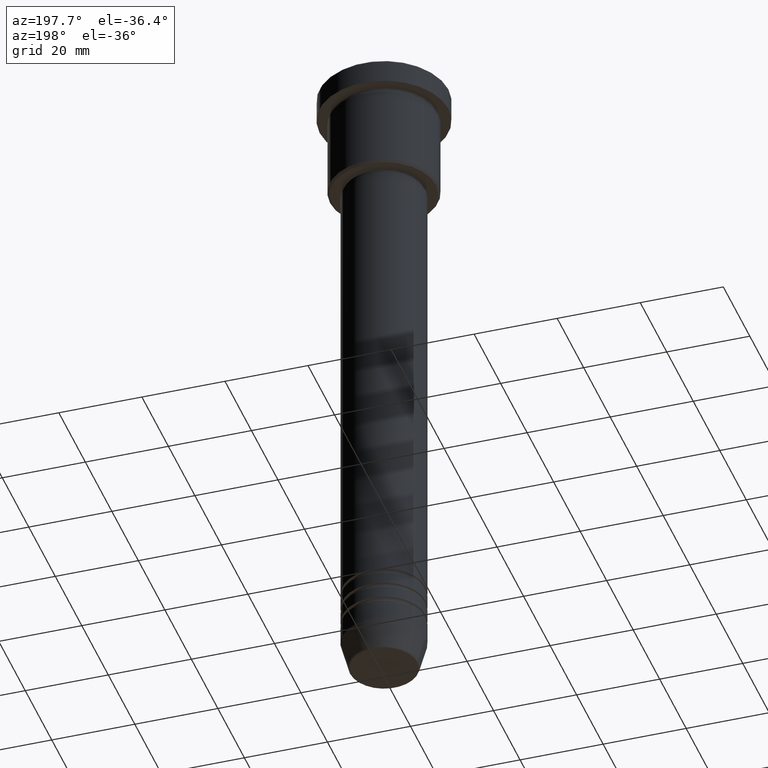
[diagram: clean part render]
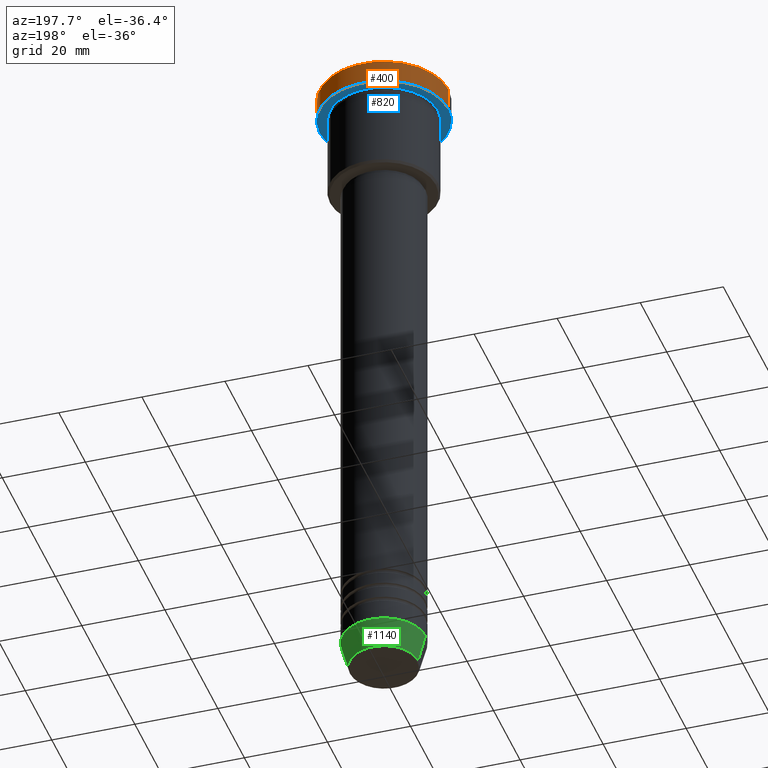
[diagram: same view with three faces highlighted in distinct colors, each labeled with its STEP entity id]
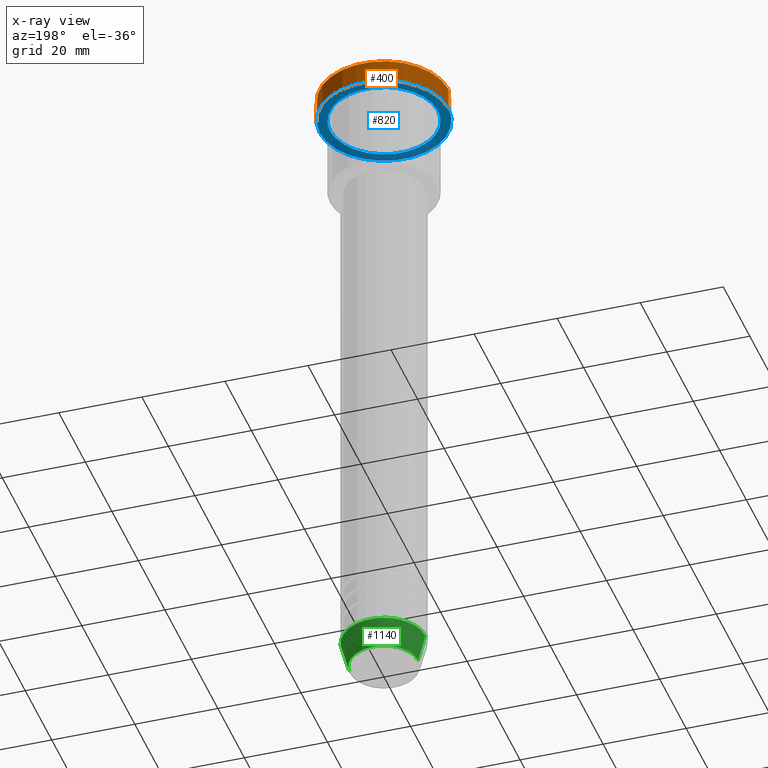
[diagram: x-ray of the same camera — body ghosted, the three highlighted faces saturated]
A machine part, auxiliary view with three faces highlighted in distinct colors.
The next image is the same camera in x-ray (body ghosted, the three faces saturated) — at least one of them is partly hidden behind the body in this view.
Their STEP definitions:

[orange] entity #400 — the highlighted cylindrical surface (partial cylindrical patch) has radius 15.5 mm, axis along (-0, -0, 1).
#18 = DIRECTION ( 'NONE',  ( 0.000000000000000000, 0.000000000000000000, -1.000000000000000000 ) ) ;
#50 = VERTEX_POINT ( 'NONE', #390 ) ;
#60 = DIRECTION ( 'NONE',  ( 1.000000000000000000, 0.000000000000000000, 0.000000000000000000 ) ) ;
#71 = DIRECTION ( 'NONE',  ( -0.000000000000000000, -0.000000000000000000, 1.000000000000000000 ) ) ;
#72 = LINE ( 'NONE', #338, #926 ) ;
#73 = EDGE_LOOP ( 'NONE', ( #109, #828, #942, #634 ) ) ;
#81 = CARTESIAN_POINT ( 'NONE',  ( 15.50000000000000000, 0.000000000000000000, -0.5000000000000125455 ) ) ;
#109 = ORIENTED_EDGE ( 'NONE', *, *, #639, .T. ) ;
#112 = CARTESIAN_POINT ( 'NONE',  ( 15.50000000000000000, 0.000000000000000000, -5.999999999999995559 ) ) ;
#165 = EDGE_CURVE ( 'NONE', #929, #724, #72, .T. ) ;
#184 = DIRECTION ( 'NONE',  ( 1.000000000000000000, 0.000000000000000000, 0.000000000000000000 ) ) ;
#212 = AXIS2_PLACEMENT_3D ( 'NONE', #886, #71, #60 ) ;
#258 = EDGE_CURVE ( 'NONE', #785, #724, #583, .T. ) ;
#291 = LINE ( 'NONE', #368, #848 ) ;
#338 = CARTESIAN_POINT ( 'NONE',  ( 15.50000000000000000, 0.000000000000000000, 0.000000000000000000 ) ) ;
#367 = AXIS2_PLACEMENT_3D ( 'NONE', #1135, #759, #414 ) ;
#368 = CARTESIAN_POINT ( 'NONE',  ( -15.50000000000000000, 1.898202538678397557E-15, 0.000000000000000000 ) ) ;
#372 = EDGE_CURVE ( 'NONE', #50, #785, #291, .T. ) ;
#390 = CARTESIAN_POINT ( 'NONE',  ( -15.50000000000000000, 1.898202538678397557E-15, -5.999999999999995559 ) ) ;
#400 = ADVANCED_FACE ( 'NONE', ( #855 ), #876, .T. ) ;
#414 = DIRECTION ( 'NONE',  ( 1.000000000000000000, 0.000000000000000000, 0.000000000000000000 ) ) ;
#583 = CIRCLE ( 'NONE', #869, 15.50000000000000000 ) ;
#634 = ORIENTED_EDGE ( 'NONE', *, *, #165, .F. ) ;
#636 = DIRECTION ( 'NONE',  ( -0.000000000000000000, -0.000000000000000000, 1.000000000000000000 ) ) ;
#639 = EDGE_CURVE ( 'NONE', #929, #50, #830, .T. ) ;
#724 = VERTEX_POINT ( 'NONE', #81 ) ;
#741 = CARTESIAN_POINT ( 'NONE',  ( -15.50000000000000000, 1.898202538678397557E-15, -0.5000000000000125455 ) ) ;
#753 = CARTESIAN_POINT ( 'NONE',  ( 0.000000000000000000, 0.000000000000000000, -0.5000000000000125455 ) ) ;
#759 = DIRECTION ( 'NONE',  ( -0.000000000000000000, -0.000000000000000000, 1.000000000000000000 ) ) ;
#785 = VERTEX_POINT ( 'NONE', #741 ) ;
#828 = ORIENTED_EDGE ( 'NONE', *, *, #372, .T. ) ;
#830 = CIRCLE ( 'NONE', #212, 15.50000000000000000 ) ;
#848 = VECTOR ( 'NONE', #1026, 1000.000000000000000 ) ;
#855 = FACE_OUTER_BOUND ( 'NONE', #73, .T. ) ;
#869 = AXIS2_PLACEMENT_3D ( 'NONE', #753, #18, #184 ) ;
#876 = CYLINDRICAL_SURFACE ( 'NONE', #367, 15.50000000000000000 ) ;
#886 = CARTESIAN_POINT ( 'NONE',  ( 0.000000000000000000, 0.000000000000000000, -5.999999999999995559 ) ) ;
#926 = VECTOR ( 'NONE', #636, 1000.000000000000000 ) ;
#929 = VERTEX_POINT ( 'NONE', #112 ) ;
#942 = ORIENTED_EDGE ( 'NONE', *, *, #258, .T. ) ;
#1026 = DIRECTION ( 'NONE',  ( -0.000000000000000000, -0.000000000000000000, 1.000000000000000000 ) ) ;
#1135 = CARTESIAN_POINT ( 'NONE',  ( 0.000000000000000000, 0.000000000000000000, 0.000000000000000000 ) ) ;

[blue] entity #820 — the highlighted planar face has unit normal (0, 0, -1).
#50 = VERTEX_POINT ( 'NONE', #390 ) ;
#60 = DIRECTION ( 'NONE',  ( 1.000000000000000000, 0.000000000000000000, 0.000000000000000000 ) ) ;
#71 = DIRECTION ( 'NONE',  ( -0.000000000000000000, -0.000000000000000000, 1.000000000000000000 ) ) ;
#91 = CARTESIAN_POINT ( 'NONE',  ( 0.000000000000000000, 15.50000000000000000, -5.999999999999995559 ) ) ;
#112 = CARTESIAN_POINT ( 'NONE',  ( 15.50000000000000000, 0.000000000000000000, -5.999999999999995559 ) ) ;
#124 = DIRECTION ( 'NONE',  ( -0.000000000000000000, -0.000000000000000000, 1.000000000000000000 ) ) ;
#212 = AXIS2_PLACEMENT_3D ( 'NONE', #886, #71, #60 ) ;
#259 = VERTEX_POINT ( 'NONE', #840 ) ;
#282 = VERTEX_POINT ( 'NONE', #557 ) ;
#374 = DIRECTION ( 'NONE',  ( -1.000000000000000000, 0.000000000000000000, -0.000000000000000000 ) ) ;
#387 = CIRCLE ( 'NONE', #907, 15.50000000000000000 ) ;
#390 = CARTESIAN_POINT ( 'NONE',  ( -15.50000000000000000, 1.898202538678397557E-15, -5.999999999999995559 ) ) ;
#413 = EDGE_CURVE ( 'NONE', #50, #929, #387, .T. ) ;
#436 = EDGE_LOOP ( 'NONE', ( #750, #909 ) ) ;
#498 = EDGE_CURVE ( 'NONE', #282, #259, #1032, .T. ) ;
#556 = FACE_OUTER_BOUND ( 'NONE', #921, .T. ) ;
#557 = CARTESIAN_POINT ( 'NONE',  ( -13.00000000000000000, 0.000000000000000000, -5.999999999999994671 ) ) ;
#598 = DIRECTION ( 'NONE',  ( 1.000000000000000000, 0.000000000000000000, 0.000000000000000000 ) ) ;
#605 = DIRECTION ( 'NONE',  ( -1.000000000000000000, 0.000000000000000000, 0.000000000000000000 ) ) ;
#639 = EDGE_CURVE ( 'NONE', #929, #50, #830, .T. ) ;
#658 = CIRCLE ( 'NONE', #924, 13.00000000000000000 ) ;
#698 = CARTESIAN_POINT ( 'NONE',  ( 0.000000000000000000, 0.000000000000000000, -5.999999999999995559 ) ) ;
#750 = ORIENTED_EDGE ( 'NONE', *, *, #498, .T. ) ;
#787 = AXIS2_PLACEMENT_3D ( 'NONE', #91, #832, #374 ) ;
#820 = ADVANCED_FACE ( 'NONE', ( #1099, #556 ), #922, .T. ) ;
#830 = CIRCLE ( 'NONE', #212, 15.50000000000000000 ) ;
#832 = DIRECTION ( 'NONE',  ( 0.000000000000000000, 0.000000000000000000, -1.000000000000000000 ) ) ;
#840 = CARTESIAN_POINT ( 'NONE',  ( 13.00000000000000000, 1.592040838891559095E-15, -5.999999999999994671 ) ) ;
#861 = DIRECTION ( 'NONE',  ( -0.000000000000000000, -0.000000000000000000, 1.000000000000000000 ) ) ;
#865 = DIRECTION ( 'NONE',  ( -1.000000000000000000, 0.000000000000000000, 0.000000000000000000 ) ) ;
#886 = CARTESIAN_POINT ( 'NONE',  ( 0.000000000000000000, 0.000000000000000000, -5.999999999999995559 ) ) ;
#907 = AXIS2_PLACEMENT_3D ( 'NONE', #698, #1056, #598 ) ;
#909 = ORIENTED_EDGE ( 'NONE', *, *, #960, .T. ) ;
#921 = EDGE_LOOP ( 'NONE', ( #1137, #934 ) ) ;
#922 = PLANE ( 'NONE',  #787 ) ;
#924 = AXIS2_PLACEMENT_3D ( 'NONE', #954, #124, #605 ) ;
#929 = VERTEX_POINT ( 'NONE', #112 ) ;
#934 = ORIENTED_EDGE ( 'NONE', *, *, #413, .F. ) ;
#954 = CARTESIAN_POINT ( 'NONE',  ( 0.000000000000000000, 0.000000000000000000, -5.999999999999995559 ) ) ;
#960 = EDGE_CURVE ( 'NONE', #259, #282, #658, .T. ) ;
#966 = CARTESIAN_POINT ( 'NONE',  ( 0.000000000000000000, 0.000000000000000000, -5.999999999999995559 ) ) ;
#1032 = CIRCLE ( 'NONE', #1167, 13.00000000000000000 ) ;
#1056 = DIRECTION ( 'NONE',  ( -0.000000000000000000, -0.000000000000000000, 1.000000000000000000 ) ) ;
#1099 = FACE_BOUND ( 'NONE', #436, .T. ) ;
#1137 = ORIENTED_EDGE ( 'NONE', *, *, #639, .F. ) ;
#1167 = AXIS2_PLACEMENT_3D ( 'NONE', #966, #861, #865 ) ;

[green] entity #1140 — the highlighted conical surface has half-angle 15 deg.
#10 = DIRECTION ( 'NONE',  ( -0.000000000000000000, -0.000000000000000000, 1.000000000000000000 ) ) ;
#80 = ORIENTED_EDGE ( 'NONE', *, *, #294, .F. ) ;
#141 = CARTESIAN_POINT ( 'NONE',  ( -10.00000000000000000, 1.224646799147353256E-15, -155.0000000000000284 ) ) ;
#196 = DIRECTION ( 'NONE',  ( -0.000000000000000000, -0.000000000000000000, 1.000000000000000000 ) ) ;
#210 = CARTESIAN_POINT ( 'NONE',  ( 0.000000000000000000, 0.000000000000000000, -161.6294095225512990 ) ) ;
#214 = EDGE_LOOP ( 'NONE', ( #275, #397, #80, #1004 ) ) ;
#275 = ORIENTED_EDGE ( 'NONE', *, *, #528, .T. ) ;
#276 = DIRECTION ( 'NONE',  ( 1.000000000000000000, 0.000000000000000000, 0.000000000000000000 ) ) ;
#278 = DIRECTION ( 'NONE',  ( 1.000000000000000000, 0.000000000000000000, 0.000000000000000000 ) ) ;
#292 = EDGE_CURVE ( 'NONE', #671, #667, #923, .T. ) ;
#294 = EDGE_CURVE ( 'NONE', #667, #340, #1035, .T. ) ;
#296 = CARTESIAN_POINT ( 'NONE',  ( -8.223655072137185940, 1.115877042642911659E-15, -161.6294095225512990 ) ) ;
#332 = DIRECTION ( 'NONE',  ( -0.2588190451025210725, 3.169619151431769255E-17, 0.9659258262890680902 ) ) ;
#340 = VERTEX_POINT ( 'NONE', #825 ) ;
#366 = VECTOR ( 'NONE', #670, 1000.000000000000114 ) ;
#397 = ORIENTED_EDGE ( 'NONE', *, *, #567, .T. ) ;
#450 = CONICAL_SURFACE ( 'NONE', #986, 10.00000000000000000, 0.2617993877991497964 ) ;
#461 = CARTESIAN_POINT ( 'NONE',  ( 0.000000000000000000, 0.000000000000000000, -155.0000000000000284 ) ) ;
#528 = EDGE_CURVE ( 'NONE', #671, #916, #681, .T. ) ;
#567 = EDGE_CURVE ( 'NONE', #916, #340, #1068, .T. ) ;
#584 = DIRECTION ( 'NONE',  ( -0.000000000000000000, -0.000000000000000000, 1.000000000000000000 ) ) ;
#667 = VERTEX_POINT ( 'NONE', #903 ) ;
#670 = DIRECTION ( 'NONE',  ( 0.2588190451025210725, 0.000000000000000000, 0.9659258262890680902 ) ) ;
#671 = VERTEX_POINT ( 'NONE', #1064 ) ;
#681 = CIRCLE ( 'NONE', #851, 8.223655072137185940 ) ;
#723 = FACE_OUTER_BOUND ( 'NONE', #214, .T. ) ;
#744 = CARTESIAN_POINT ( 'NONE',  ( 0.000000000000000000, 0.000000000000000000, -155.0000000000000284 ) ) ;
#825 = CARTESIAN_POINT ( 'NONE',  ( -10.00000000000000000, 1.224646799147353256E-15, -155.0000000000000284 ) ) ;
#851 = AXIS2_PLACEMENT_3D ( 'NONE', #210, #584, #1125 ) ;
#903 = CARTESIAN_POINT ( 'NONE',  ( 10.00000000000000000, 0.000000000000000000, -155.0000000000000284 ) ) ;
#916 = VERTEX_POINT ( 'NONE', #296 ) ;
#923 = LINE ( 'NONE', #1100, #366 ) ;
#928 = VECTOR ( 'NONE', #332, 1000.000000000000114 ) ;
#986 = AXIS2_PLACEMENT_3D ( 'NONE', #744, #10, #278 ) ;
#1004 = ORIENTED_EDGE ( 'NONE', *, *, #292, .F. ) ;
#1035 = CIRCLE ( 'NONE', #1074, 10.00000000000000000 ) ;
#1064 = CARTESIAN_POINT ( 'NONE',  ( 8.223655072137185940, 0.000000000000000000, -161.6294095225512990 ) ) ;
#1068 = LINE ( 'NONE', #141, #928 ) ;
#1074 = AXIS2_PLACEMENT_3D ( 'NONE', #461, #196, #276 ) ;
#1100 = CARTESIAN_POINT ( 'NONE',  ( 10.00000000000000000, 0.000000000000000000, -155.0000000000000284 ) ) ;
#1125 = DIRECTION ( 'NONE',  ( 1.000000000000000000, 0.000000000000000000, 0.000000000000000000 ) ) ;
#1140 = ADVANCED_FACE ( 'NONE', ( #723 ), #450, .T. ) ;